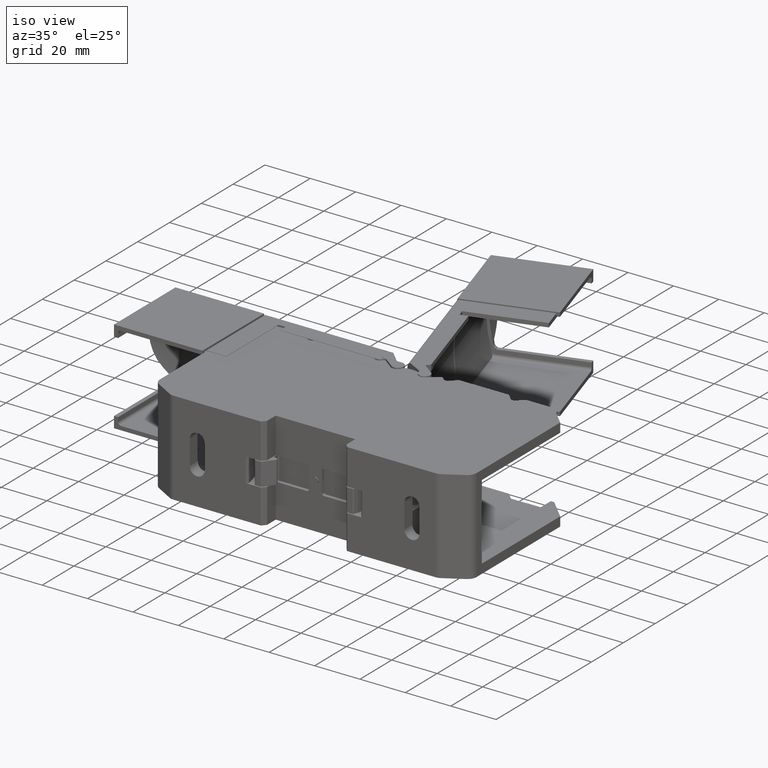
[diagram: clean part render]
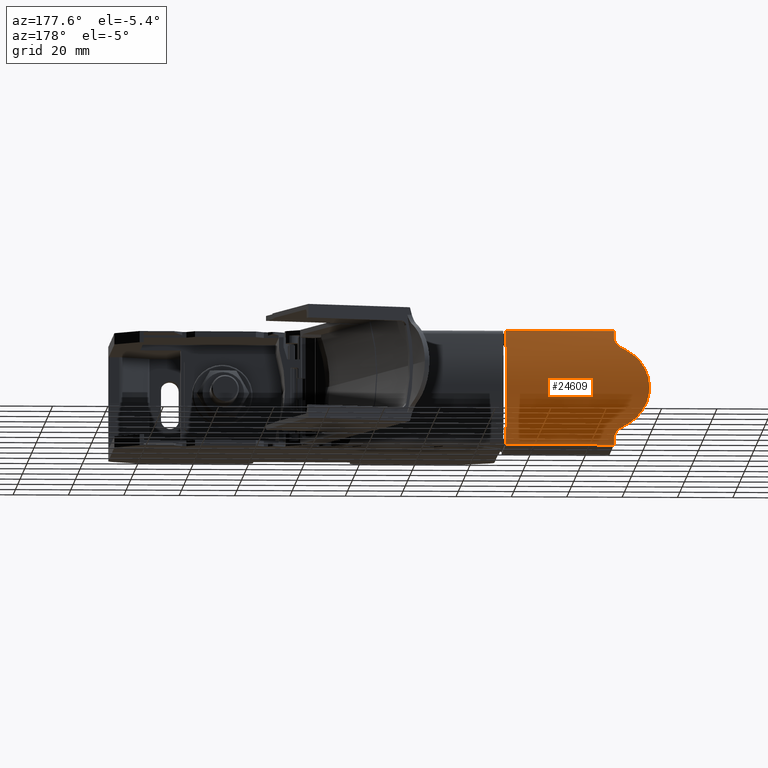
[diagram: tour spotlight — one face highlighted and labeled with its STEP entity id]
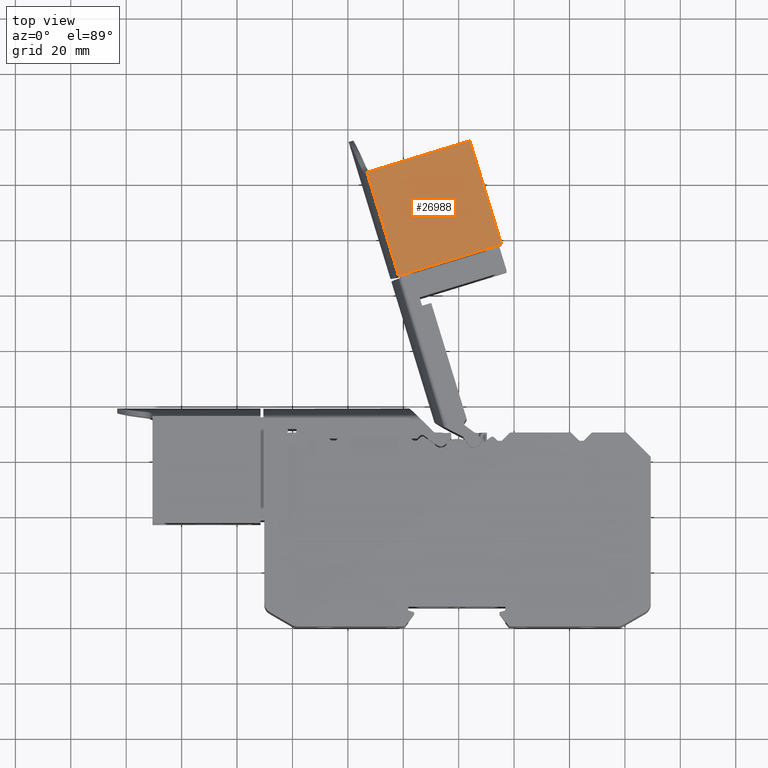
[diagram: tour spotlight — one face highlighted and labeled with its STEP entity id]
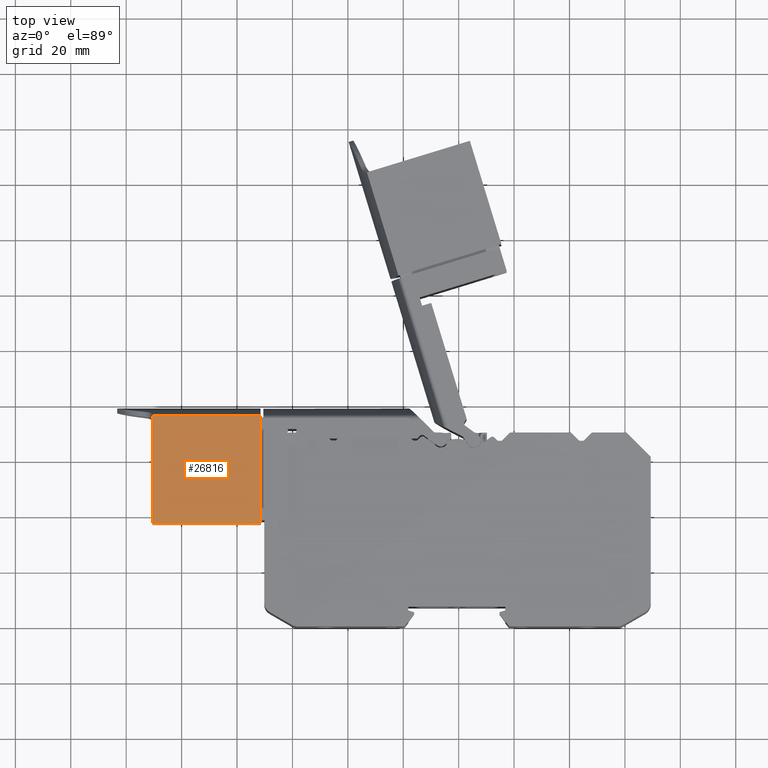
[diagram: tour spotlight — one face highlighted and labeled with its STEP entity id]
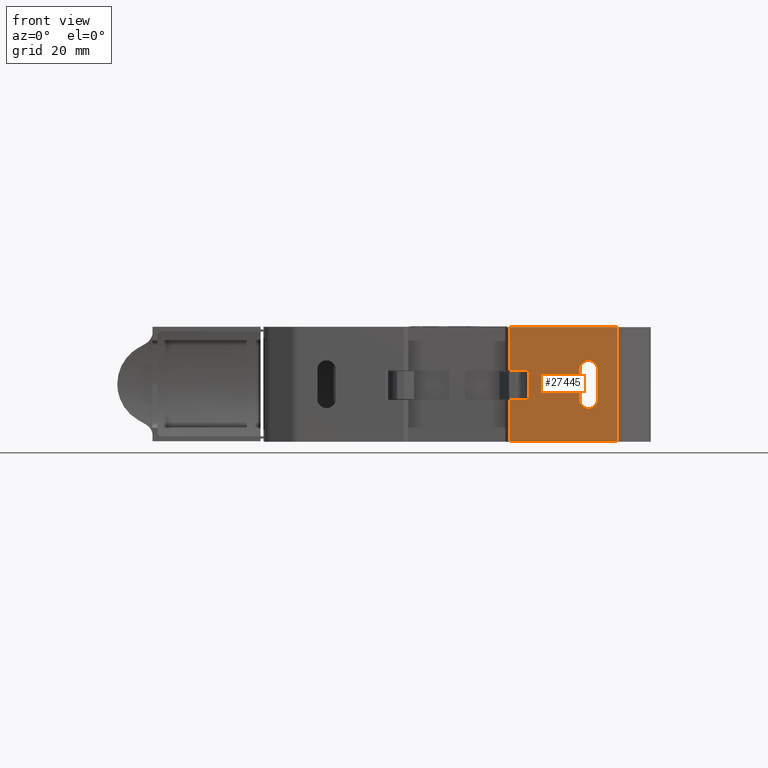
[diagram: tour spotlight — one face highlighted and labeled with its STEP entity id]
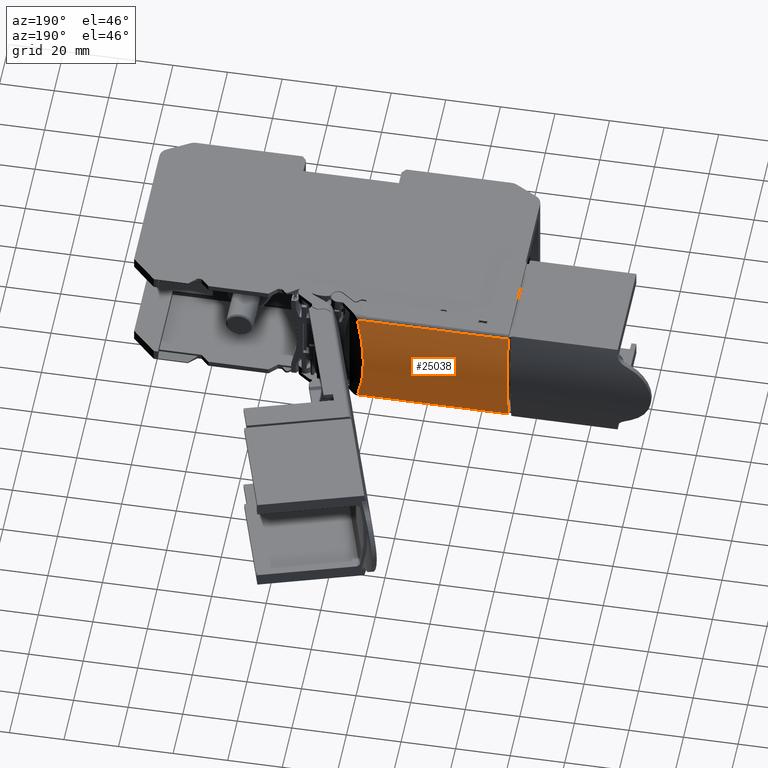
[diagram: tour spotlight — one face highlighted and labeled with its STEP entity id]
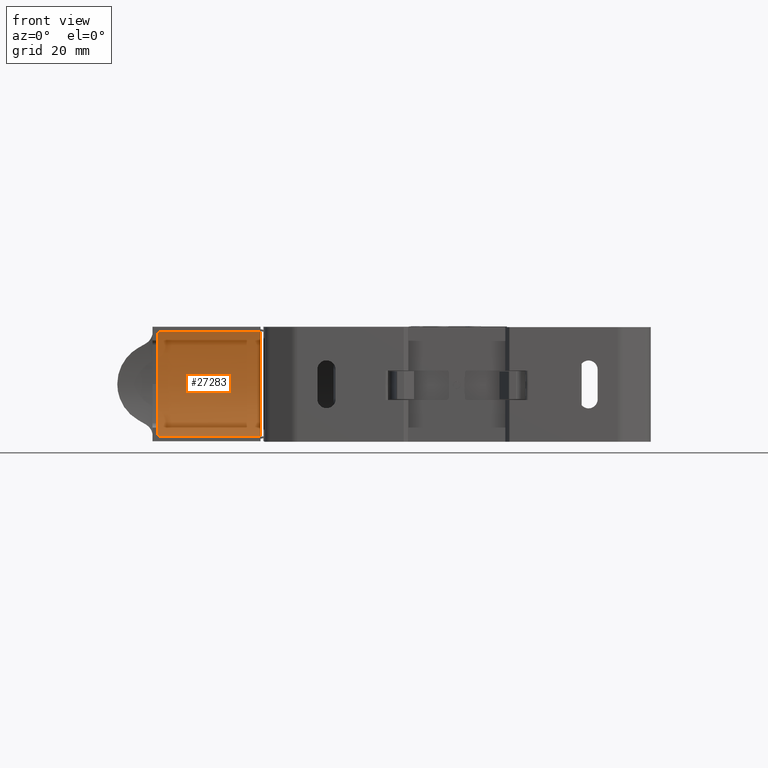
[diagram: tour spotlight — one face highlighted and labeled with its STEP entity id]
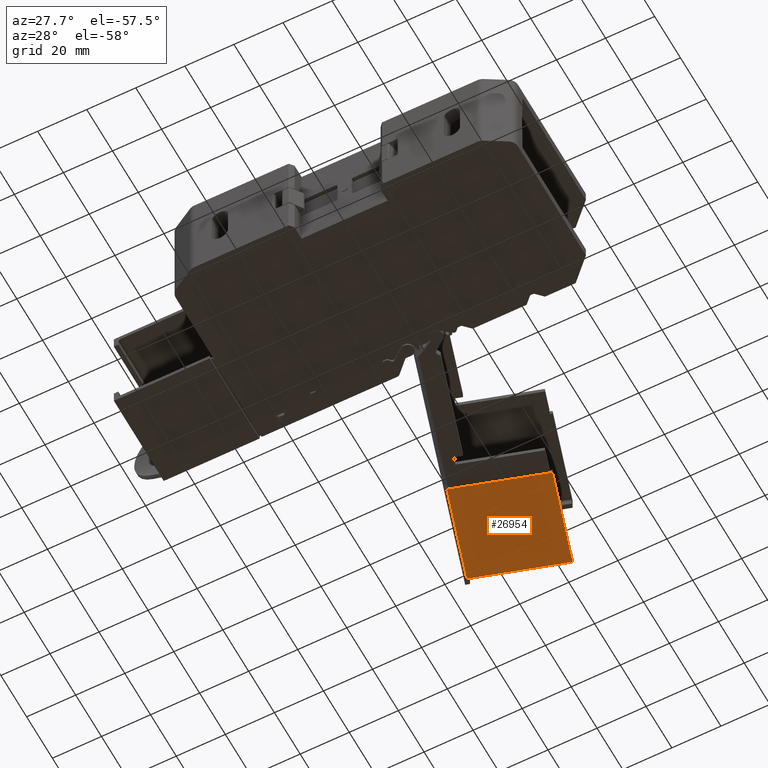
[diagram: tour spotlight — one face highlighted and labeled with its STEP entity id]
A machine part: a face-by-face anatomy tour. The part has 1050 B-rep faces; the first image is the clean iso view, then the 7 largest visible faces are spotlighted one at a time (largest first), each with its STEP entity span.

Face 1 — auxiliary view, entity #24609. In plain terms, the highlighted cylindrical surface (partial cylindrical patch) has radius 72.5704 mm, axis along (-1, -0, -0).
Definition (entity closure, byte-faithful):
#2932 = CARTESIAN_POINT ( 'NONE',  ( -110.5050725394208700, 296.0026341954508700, -7.005957406667571200 ) ) ;
#2943 = CARTESIAN_POINT ( 'NONE',  ( -71.50503606137853300, 296.0026341954512100, 34.29404259332196100 ) ) ;
#2955 = CARTESIAN_POINT ( 'NONE',  ( -110.5050725394209100, 296.7543316294995200, -4.279842130120591100 ) ) ;
#2965 = CARTESIAN_POINT ( 'NONE',  ( -71.50503606137856100, 296.0026341954508700, -7.005957406667895300 ) ) ;
#3032 = CARTESIAN_POINT ( 'NONE',  ( -110.5050725394209100, 296.7543316294995700, 31.56792731677514400 ) ) ;
#3036 = CARTESIAN_POINT ( 'NONE',  ( -110.5050725394209100, 296.0026341954512100, 34.29404259332169100 ) ) ;
#3298 = CARTESIAN_POINT ( 'NONE',  ( -112.8990787374856400, 297.5151600481688100, -0.9737772837747648000 ) ) ;
#3333 = CARTESIAN_POINT ( 'NONE',  ( -112.8990787374856100, 297.5151600481690400, 28.26186247042915100 ) ) ;
#3347 = CARTESIAN_POINT ( 'NONE',  ( -115.7178854605156700, 297.8305044492249700, 26.63442365009392500 ) ) ;
#4615 = CARTESIAN_POINT ( 'NONE',  ( -116.8543125562984400, 297.9499082700007800, 1.309933913630054300 ) ) ;
#4620 = CARTESIAN_POINT ( 'NONE',  ( -115.7178854605156500, 297.8305044492246300, 0.6536615365604073700 ) ) ;
#4625 = CARTESIAN_POINT ( 'NONE',  ( -117.8877289958305700, 298.0850312315689600, 2.101820327857587300 ) ) ;
#4660 = CARTESIAN_POINT ( 'NONE',  ( -121.8244631157580200, 298.7269411740001600, 7.295368205416640900 ) ) ;
#4676 = CARTESIAN_POINT ( 'NONE',  ( -123.0474294755066900, 298.9668181013278200, 11.03290725538871300 ) ) ;
#4679 = CARTESIAN_POINT ( 'NONE',  ( -122.3253881063606900, 298.8228957410053100, 8.503766200315354200 ) ) ;
#4681 = CARTESIAN_POINT ( 'NONE',  ( -123.2178854605150200, 299.0026341954512600, 13.64404259332700200 ) ) ;
#4686 = CARTESIAN_POINT ( 'NONE',  ( -119.7493985249675900, 298.3599004902917500, 3.961221199725914600 ) ) ;
#4687 = CARTESIAN_POINT ( 'NONE',  ( -123.2178168627923000, 299.0026341954513800, 12.32765114214174500 ) ) ;
#4692 = CARTESIAN_POINT ( 'NONE',  ( -122.5363702102339500, 298.8646483526479200, 9.125904335226772800 ) ) ;
#4699 = CARTESIAN_POINT ( 'NONE',  ( -121.5341373543549500, 298.6726628011476200, 6.707679128745735600 ) ) ;
#4700 = CARTESIAN_POINT ( 'NONE',  ( -120.5435702718405500, 298.4944608753864900, 4.994346449375384200 ) ) ;
#6408 = ORIENTED_EDGE ( 'NONE', *, *, #41979, .T. ) ;
#6415 = ORIENTED_EDGE ( 'NONE', *, *, #22274, .T. ) ;
#6420 = ORIENTED_EDGE ( 'NONE', *, *, #22697, .F. ) ;
#6428 = ORIENTED_EDGE ( 'NONE', *, *, #22706, .F. ) ;
#6430 = ORIENTED_EDGE ( 'NONE', *, *, #22236, .T. ) ;
#6434 = ORIENTED_EDGE ( 'NONE', *, *, #22875, .F. ) ;
#6446 = ORIENTED_EDGE ( 'NONE', *, *, #22860, .T. ) ;
#6454 = ORIENTED_EDGE ( 'NONE', *, *, #22877, .T. ) ;
#6455 = ORIENTED_EDGE ( 'NONE', *, *, #22346, .T. ) ;
#6513 = ORIENTED_EDGE ( 'NONE', *, *, #22858, .T. ) ;
#6517 = ORIENTED_EDGE ( 'NONE', *, *, #22810, .T. ) ;
#7533 = AXIS2_PLACEMENT_3D ( 'NONE', #28595, #28640, #28612 ) ;
#8913 = VECTOR ( 'NONE', #16417, 1000.000000000000000 ) ;
#8927 = VECTOR ( 'NONE', #16405, 1000.000000000000000 ) ;
#10444 = EDGE_LOOP ( 'NONE', ( #6430, #6408, #6415, #6455, #6446, #6454, #6428, #6434, #6420, #6513, #6517 ) ) ;
#11038 = CARTESIAN_POINT ( 'NONE',  ( -123.2178854605150200, 299.0026341954512600, 13.64404259332700200 ) ) ;
#14370 = CARTESIAN_POINT ( 'NONE',  ( -112.8990787374856400, 297.5151600481688100, -0.9737772837747648000 ) ) ;
#14378 = CARTESIAN_POINT ( 'NONE',  ( -113.8386809784956500, 297.6264662795966300, -0.4325218491647461700 ) ) ;
#14391 = CARTESIAN_POINT ( 'NONE',  ( -114.7782832195056400, 297.7315902217683300, 0.1100049369902266500 ) ) ;
#14418 = CARTESIAN_POINT ( 'NONE',  ( -115.7178854605156500, 297.8305044492246300, 0.6536615365604073700 ) ) ;
#14440 = CARTESIAN_POINT ( 'NONE',  ( -115.7178854605156700, 297.8305044492249700, 26.63442365009392500 ) ) ;
#14450 = CARTESIAN_POINT ( 'NONE',  ( -120.5456305636312600, 298.4948162919998800, 22.29035455602923200 ) ) ;
#14457 = CARTESIAN_POINT ( 'NONE',  ( -123.2178854605150200, 299.0026341954512600, 13.64404259332700200 ) ) ;
#14458 = CARTESIAN_POINT ( 'NONE',  ( -123.2178166039367700, 299.0026341954513200, 14.96163359631207800 ) ) ;
#14461 = CARTESIAN_POINT ( 'NONE',  ( -122.3245490683579500, 298.8227298901330800, 18.78656780046410200 ) ) ;
#14463 = CARTESIAN_POINT ( 'NONE',  ( -121.5332937732005800, 298.6725186577847900, 20.58177543177640000 ) ) ;
#14469 = CARTESIAN_POINT ( 'NONE',  ( -123.0468398982345200, 298.9667093662881100, 16.25857729928655700 ) ) ;
#14471 = CARTESIAN_POINT ( 'NONE',  ( -119.7516645137898100, 298.3602924371360200, 23.32400741723201100 ) ) ;
#14472 = CARTESIAN_POINT ( 'NONE',  ( -122.5349856909624000, 298.8643669743854600, 18.16674449967978700 ) ) ;
#14473 = CARTESIAN_POINT ( 'NONE',  ( -116.8557200271408600, 297.9500562874826000, 25.97733773302375600 ) ) ;
#14480 = CARTESIAN_POINT ( 'NONE',  ( -117.8900427511207200, 298.0853156094952400, 25.18454580807052400 ) ) ;
#14486 = CARTESIAN_POINT ( 'NONE',  ( -121.8240387161216300, 298.7268660525979800, 19.99350243357102000 ) ) ;
#14542 = CARTESIAN_POINT ( 'NONE',  ( -114.7782832195056500, 297.7315902217685600, 27.17808024966412000 ) ) ;
#14592 = CARTESIAN_POINT ( 'NONE',  ( -115.7178854605156700, 297.8305044492249700, 26.63442365009392500 ) ) ;
#14593 = CARTESIAN_POINT ( 'NONE',  ( -112.8990787374856100, 297.5151600481690400, 28.26186247042915100 ) ) ;
#14618 = CARTESIAN_POINT ( 'NONE',  ( -113.8386809784956300, 297.6264662795968000, 27.72060703581912100 ) ) ;
#16379 = LINE ( 'NONE', #16395, #8913 ) ;
#16395 = CARTESIAN_POINT ( 'NONE',  ( -76.78309961592110300, 296.0026341954512100, 34.29404259332215300 ) ) ;
#16405 = DIRECTION ( 'NONE',  ( 1.000000000000000000, -0.0000000000000000000, -1.399743634989590200E-014 ) ) ;
#16414 = LINE ( 'NONE', #16427, #8927 ) ;
#16417 = DIRECTION ( 'NONE',  ( -1.000000000000000000, -0.0000000000000000000, -1.399743634989587900E-014 ) ) ;
#16427 = CARTESIAN_POINT ( 'NONE',  ( -76.78309961592110300, 296.0026341954508700, -7.005957406667866000 ) ) ;
#16657 = CARTESIAN_POINT ( 'NONE',  ( -110.5050725394209100, 296.7543316294995200, -4.279842130120591100 ) ) ;
#16673 = CARTESIAN_POINT ( 'NONE',  ( -110.6902964498702700, 296.9210348751601600, -3.613440781147891500 ) ) ;
#16676 = CARTESIAN_POINT ( 'NONE',  ( -111.5524000782824900, 297.2732893154860100, -2.104790158137654000 ) ) ;
#16691 = CARTESIAN_POINT ( 'NONE',  ( -111.9068176756990600, 297.3574504058832400, -1.721233141650084600 ) ) ;
#16693 = CARTESIAN_POINT ( 'NONE',  ( -112.5890468488559700, 297.4783235225494300, -1.152904448784714900 ) ) ;
#16697 = CARTESIAN_POINT ( 'NONE',  ( -110.7509474996588500, 296.9600851017753500, -3.453106211314353100 ) ) ;
#16698 = CARTESIAN_POINT ( 'NONE',  ( -112.3022275973306400, 297.4345922338901000, -1.362225731798913700 ) ) ;
#16702 = CARTESIAN_POINT ( 'NONE',  ( -111.1358080831133900, 297.1461706832241700, -2.668142986840614100 ) ) ;
#16703 = CARTESIAN_POINT ( 'NONE',  ( -112.8990787374856400, 297.5151600481688100, -0.9737772837747648000 ) ) ;
#16709 = CARTESIAN_POINT ( 'NONE',  ( -110.5406787375246200, 296.7976699919843200, -4.109809499437533400 ) ) ;
#16713 = CARTESIAN_POINT ( 'NONE',  ( -111.4430299112808600, 297.2428652729285000, -2.241134135855897800 ) ) ;
#16720 = CARTESIAN_POINT ( 'NONE',  ( -110.5848447592352200, 296.8396539482259900, -3.942514777383192100 ) ) ;
#16721 = CARTESIAN_POINT ( 'NONE',  ( -111.7850661941773600, 297.3307325373290300, -1.844138529884344000 ) ) ;
#16726 = CARTESIAN_POINT ( 'NONE',  ( -110.9623878346607900, 297.0756127972816200, -2.971762713192237700 ) ) ;
#16798 = CARTESIAN_POINT ( 'NONE',  ( -110.5768128519845400, 296.8416504467264800, 31.22534288695381100 ) ) ;
#16803 = CARTESIAN_POINT ( 'NONE',  ( -111.5558430060588600, 297.2742218530887000, 29.38868509675656100 ) ) ;
#16805 = CARTESIAN_POINT ( 'NONE',  ( -111.7900969805826500, 297.3319038059735200, 29.12686630354597000 ) ) ;
#16806 = CARTESIAN_POINT ( 'NONE',  ( -112.5920451089430400, 297.4786800021800600, 28.43925616072877800 ) ) ;
#16810 = CARTESIAN_POINT ( 'NONE',  ( -110.9656071161409300, 297.0770143889518500, 30.25387019935655900 ) ) ;
#16813 = CARTESIAN_POINT ( 'NONE',  ( -110.6832678298413100, 296.9234533724201100, 30.89395174535571100 ) ) ;
#16816 = CARTESIAN_POINT ( 'NONE',  ( -110.5050725394208800, 296.5215034153927700, -5.193314432073258900 ) ) ;
#16817 = CARTESIAN_POINT ( 'NONE',  ( -112.3069632571910700, 297.4352826845832900, 28.64700144787073900 ) ) ;
#16822 = CARTESIAN_POINT ( 'NONE',  ( -110.5050725394208800, 296.2708741833486100, -6.102249526536594400 ) ) ;
#16824 = CARTESIAN_POINT ( 'NONE',  ( -110.5050725394208700, 296.0026341954508700, -7.005957406667571200 ) ) ;
#16829 = CARTESIAN_POINT ( 'NONE',  ( -110.5050725394209100, 296.7543316294995200, -4.279842130120591100 ) ) ;
#16832 = CARTESIAN_POINT ( 'NONE',  ( -111.4444580978837400, 297.2432595497788800, 29.52745615180381800 ) ) ;
#16839 = CARTESIAN_POINT ( 'NONE',  ( -111.9141323003532300, 297.3589899000401100, 29.00220007896457400 ) ) ;
#16842 = CARTESIAN_POINT ( 'NONE',  ( -110.5050725394209100, 296.7543316294995700, 31.56792731677514400 ) ) ;
#16852 = CARTESIAN_POINT ( 'NONE',  ( -111.1380258914160500, 297.1469778109016000, 29.95270735156883600 ) ) ;
#16855 = CARTESIAN_POINT ( 'NONE',  ( -112.8990787374856100, 297.5151600481690400, 28.26186247042915100 ) ) ;
#16856 = CARTESIAN_POINT ( 'NONE',  ( -71.50503606137854700, 298.1275586446678900, 2.404528938922788000 ) ) ;
#16858 = CARTESIAN_POINT ( 'NONE',  ( -71.50503606137857600, 298.4491518370589900, 22.60896952829321200 ) ) ;
#16859 = CARTESIAN_POINT ( 'NONE',  ( -71.50503606137856100, 298.9074537241138500, 18.02937710363967500 ) ) ;
#16861 = CARTESIAN_POINT ( 'NONE',  ( -71.50503606137856100, 298.7486453247216800, 6.633161411566352000 ) ) ;
#16863 = CARTESIAN_POINT ( 'NONE',  ( -71.50503606137854700, 298.2723217834017600, 23.91422224343003600 ) ) ;
#16865 = CARTESIAN_POINT ( 'NONE',  ( -71.50503606137857600, 298.6296991631433000, 21.08437738760826000 ) ) ;
#16871 = CARTESIAN_POINT ( 'NONE',  ( -71.50503606137856100, 298.2249550791960900, 3.047815334385647600 ) ) ;
#16872 = CARTESIAN_POINT ( 'NONE',  ( -71.50503606137856100, 299.0026603343211500, 15.40083514149736400 ) ) ;
#16874 = CARTESIAN_POINT ( 'NONE',  ( -71.50503606137856100, 298.3484606626171300, 23.37053859831084400 ) ) ;
#16875 = CARTESIAN_POINT ( 'NONE',  ( -71.50503606137854700, 297.7384610543200000, 27.57167114957357200 ) ) ;
#16877 = CARTESIAN_POINT ( 'NONE',  ( -71.50503606137856100, 298.3030749782707300, 23.69676955682021800 ) ) ;
#16878 = CARTESIAN_POINT ( 'NONE',  ( -71.50503606137856100, 299.0025819177121800, 10.13045749698705000 ) ) ;
#16886 = CARTESIAN_POINT ( 'NONE',  ( -71.50503606137856100, 297.1482717808631300, -2.818222776735284500 ) ) ;
#16887 = CARTESIAN_POINT ( 'NONE',  ( -71.50503606137857600, 298.0076347368871000, 1.654052157220104600 ) ) ;
#16888 = CARTESIAN_POINT ( 'NONE',  ( -110.5050725394209100, 296.7543316294995700, 31.56792731677514400 ) ) ;
#16889 = CARTESIAN_POINT ( 'NONE',  ( -71.50503606137857600, 297.7478127057052600, 0.1574679875662869700 ) ) ;
#16890 = CARTESIAN_POINT ( 'NONE',  ( -71.50503606137856100, 298.1768145106148000, 2.726629994697314300 ) ) ;
#16891 = CARTESIAN_POINT ( 'NONE',  ( -71.50503606137854700, 298.2091761780170600, 2.941468065064890800 ) ) ;
#16892 = CARTESIAN_POINT ( 'NONE',  ( -71.50503606137854700, 298.2565233376459400, 24.02412149681621000 ) ) ;
#16893 = CARTESIAN_POINT ( 'NONE',  ( -71.50503606137853300, 296.9923976259451600, 30.95914434686582700 ) ) ;
#16895 = CARTESIAN_POINT ( 'NONE',  ( -110.5050725394209100, 296.5215034153930600, 32.48139961872760000 ) ) ;
#16896 = CARTESIAN_POINT ( 'NONE',  ( -71.50503606137856100, 296.4974135096060800, -5.338853303269062600 ) ) ;
#16897 = CARTESIAN_POINT ( 'NONE',  ( -71.50503606137853300, 296.0026341954512100, 34.29404259332196100 ) ) ;
#16901 = CARTESIAN_POINT ( 'NONE',  ( -71.50503606137856100, 296.0026341954508700, -7.005957406667895300 ) ) ;
#16935 = CARTESIAN_POINT ( 'NONE',  ( -110.5050725394209100, 296.0026341954512100, 34.29404259332169100 ) ) ;
#16940 = CARTESIAN_POINT ( 'NONE',  ( -110.5050725394209100, 296.2708741833490600, 33.39033471319067600 ) ) ;
#17644 = VERTEX_POINT ( 'NONE', #37505 ) ;
#18615 = VERTEX_POINT ( 'NONE', #11038 ) ;
#19101 = B_SPLINE_CURVE_WITH_KNOTS ( 'NONE', 3,
 ( #14370, #14378, #14391, #14418 ),
 .UNSPECIFIED., .F., .F.,
 ( 4, 4 ),
 ( 0.0000000000000000000, 1.000000000000000000 ),
 .UNSPECIFIED. ) ;
#19180 = B_SPLINE_CURVE_WITH_KNOTS ( 'NONE', 3,
 ( #14592, #14542, #14618, #14593 ),
 .UNSPECIFIED., .F., .F.,
 ( 4, 4 ),
 ( 0.0000000000000000000, 1.000000000000000000 ),
 .UNSPECIFIED. ) ;
#19188 = B_SPLINE_CURVE_WITH_KNOTS ( 'NONE', 3,
 ( #14457, #14458, #14469, #14472, #14461, #14486, #14463, #14450, #14471, #14480, #14473, #14440 ),
 .UNSPECIFIED., .F., .F.,
 ( 4, 2, 2, 2, 2, 4 ),
 ( 0.0000000000000000000, 0.2499999999999998900, 0.3749999999999997800, 0.4999999999999996700, 0.7499999999999998900, 1.000000000000000000 ),
 .UNSPECIFIED. ) ;
#19221 = B_SPLINE_CURVE_WITH_KNOTS ( 'NONE', 3,
 ( #16657, #16709, #16720, #16673, #16697, #16726, #16702, #16713, #16676, #16721, #16691, #16698, #16693, #16703 ),
 .UNSPECIFIED., .F., .F.,
 ( 4, 2, 2, 2, 2, 2, 4 ),
 ( 0.0000000000000000000, 0.1250000000000009700, 0.2500000000000019400, 0.5000000000000036600, 0.6250000000000045500, 0.7500000000000053300, 1.000000000000000000 ),
 .UNSPECIFIED. ) ;
#19248 = B_SPLINE_CURVE_WITH_KNOTS ( 'NONE', 3,
 ( #16824, #16822, #16816, #16829 ),
 .UNSPECIFIED., .F., .F.,
 ( 4, 4 ),
 ( 0.0000000000000000000, 1.000000000000000000 ),
 .UNSPECIFIED. ) ;
#19254 = B_SPLINE_CURVE_WITH_KNOTS ( 'NONE', 3,
 ( #16901, #16896, #16886, #16889, #16887, #16856, #16890, #16891, #16871, #16861, #16878, #16872, #16859, #16865, #16858, #16874, #16877, #16863, #16892, #16875, #16893, #16897 ),
 .UNSPECIFIED., .F., .F.,
 ( 4, 1, 1, 1, 1, 2, 2, 2, 1, 1, 1, 1, 2, 2, 4 ),
 ( 0.0000000000000000000, 0.1250000000000031100, 0.1875000000000046600, 0.2187500000000054400, 0.2343750000000058300, 0.2421875000000060200, 0.2500000000000062200, 0.5000000000000008900, 0.6249999999999982200, 0.6874999999999971100, 0.7187499999999966700, 0.7343749999999965600, 0.7421874999999966700, 0.7499999999999967800, 1.000000000000000000 ),
 .UNSPECIFIED. ) ;
#19262 = B_SPLINE_CURVE_WITH_KNOTS ( 'NONE', 3,
 ( #16855, #16806, #16817, #16839, #16805, #16803, #16832, #16852, #16810, #16813, #16798, #16842 ),
 .UNSPECIFIED., .F., .F.,
 ( 4, 2, 2, 2, 2, 4 ),
 ( 0.0000000000000000000, 0.2499999999999993900, 0.3750000000000018300, 0.5000000000000043300, 0.7500000000000021100, 1.000000000000000000 ),
 .UNSPECIFIED. ) ;
#19271 = B_SPLINE_CURVE_WITH_KNOTS ( 'NONE', 3,
 ( #16888, #16895, #16940, #16935 ),
 .UNSPECIFIED., .F., .F.,
 ( 4, 4 ),
 ( 0.0000000000000000000, 1.000000000000000000 ),
 .UNSPECIFIED. ) ;
#19660 = B_SPLINE_CURVE_WITH_KNOTS ( 'NONE', 3,
 ( #4620, #4615, #4625, #4686, #4700, #4699, #4660, #4679, #4692, #4676, #4687, #4681 ),
 .UNSPECIFIED., .F., .F.,
 ( 4, 2, 2, 2, 2, 4 ),
 ( 0.0000000000000000000, 0.2500000000000003300, 0.5000000000000005600, 0.6250000000000006700, 0.7500000000000008900, 1.000000000000000000 ),
 .UNSPECIFIED. ) ;
#22236 = EDGE_CURVE ( 'NONE', #37027, #17644, #19101, .T. ) ;
#22274 = EDGE_CURVE ( 'NONE', #18615, #37132, #19188, .T. ) ;
#22346 = EDGE_CURVE ( 'NONE', #37132, #37154, #19180, .T. ) ;
#22697 = EDGE_CURVE ( 'NONE', #36415, #36540, #16414, .T. ) ;
#22706 = EDGE_CURVE ( 'NONE', #36413, #36571, #16379, .T. ) ;
#22810 = EDGE_CURVE ( 'NONE', #36473, #37027, #19221, .T. ) ;
#22858 = EDGE_CURVE ( 'NONE', #36415, #36473, #19248, .T. ) ;
#22860 = EDGE_CURVE ( 'NONE', #37154, #36621, #19262, .T. ) ;
#22875 = EDGE_CURVE ( 'NONE', #36540, #36413, #19254, .T. ) ;
#22877 = EDGE_CURVE ( 'NONE', #36621, #36571, #19271, .T. ) ;
#24609 = ADVANCED_FACE ( 'NONE', ( #28638 ), #28598, .T. ) ;
#28595 = CARTESIAN_POINT ( 'NONE',  ( 69.49498369894000400, 226.4322175288260200, 13.64404259332774100 ) ) ;
#28598 = CYLINDRICAL_SURFACE ( 'NONE', #7533, 72.57041666662542000 ) ;
#28612 = DIRECTION ( 'NONE',  ( 1.147392156081976500E-015, -1.000000000000000000, 0.0000000000000000000 ) ) ;
#28638 = FACE_OUTER_BOUND ( 'NONE', #10444, .T. ) ;
#28640 = DIRECTION ( 'NONE',  ( -1.000000000000000000, -1.165734175856429900E-015, -9.051553984792400000E-030 ) ) ;
#36413 = VERTEX_POINT ( 'NONE', #2943 ) ;
#36415 = VERTEX_POINT ( 'NONE', #2932 ) ;
#36473 = VERTEX_POINT ( 'NONE', #2955 ) ;
#36540 = VERTEX_POINT ( 'NONE', #2965 ) ;
#36571 = VERTEX_POINT ( 'NONE', #3036 ) ;
#36621 = VERTEX_POINT ( 'NONE', #3032 ) ;
#37027 = VERTEX_POINT ( 'NONE', #3298 ) ;
#37132 = VERTEX_POINT ( 'NONE', #3347 ) ;
#37154 = VERTEX_POINT ( 'NONE', #3333 ) ;
#37505 = CARTESIAN_POINT ( 'NONE',  ( -115.7178854605156500, 297.8305044492246300, 0.6536615365604073700 ) ) ;
#41979 = EDGE_CURVE ( 'NONE', #17644, #18615, #19660, .T. ) ;

Face 2 — top view, entity #26988. In plain terms, the highlighted planar face has unit normal (-0, 0, 1).
Definition (entity closure, byte-faithful):
#441 = VECTOR ( 'NONE', #34008, 1000.000000000000100 ) ;
#458 = VECTOR ( 'NONE', #34087, 1000.000000000000000 ) ;
#478 = VECTOR ( 'NONE', #34003, 1000.000000000000100 ) ;
#492 = VECTOR ( 'NONE', #34078, 1000.000000000000100 ) ;
#9676 = EDGE_LOOP ( 'NONE', ( #31246, #31267, #31226, #31165 ) ) ;
#10769 = AXIS2_PLACEMENT_3D ( 'NONE', #40837, #40838, #40844 ) ;
#17672 = VERTEX_POINT ( 'NONE', #37449 ) ;
#17673 = VERTEX_POINT ( 'NONE', #37459 ) ;
#17694 = VERTEX_POINT ( 'NONE', #37627 ) ;
#17713 = VERTEX_POINT ( 'NONE', #37631 ) ;
#25775 = EDGE_CURVE ( 'NONE', #17694, #17672, #34016, .T. ) ;
#25787 = EDGE_CURVE ( 'NONE', #17673, #17672, #34022, .T. ) ;
#25835 = EDGE_CURVE ( 'NONE', #17713, #17673, #34072, .T. ) ;
#25858 = EDGE_CURVE ( 'NONE', #17713, #17694, #34122, .T. ) ;
#26988 = ADVANCED_FACE ( 'NONE', ( #40841 ), #40851, .T. ) ;
#31165 = ORIENTED_EDGE ( 'NONE', *, *, #25787, .F. ) ;
#31226 = ORIENTED_EDGE ( 'NONE', *, *, #25775, .T. ) ;
#31246 = ORIENTED_EDGE ( 'NONE', *, *, #25835, .F. ) ;
#31267 = ORIENTED_EDGE ( 'NONE', *, *, #25858, .T. ) ;
#33978 = CARTESIAN_POINT ( 'NONE',  ( 4.039143424670877300, 395.2841667578187000, 34.29404259331268200 ) ) ;
#34003 = DIRECTION ( 'NONE',  ( -0.9563047559630366600, -0.2923717047227327700, 0.0000000000000000000 ) ) ;
#34008 = DIRECTION ( 'NONE',  ( -0.2923717047227393800, 0.9563047559630346600, -6.982962677686257200E-015 ) ) ;
#34016 = LINE ( 'NONE', #33978, #478 ) ;
#34022 = LINE ( 'NONE', #34024, #441 ) ;
#34024 = CARTESIAN_POINT ( 'NONE',  ( 19.50457969562841100, 211.7878501523167600, 34.29404259331438700 ) ) ;
#34072 = LINE ( 'NONE', #34074, #492 ) ;
#34074 = CARTESIAN_POINT ( 'NONE',  ( 64.80372116568318600, 373.0797458713389000, 34.29404259331336400 ) ) ;
#34078 = DIRECTION ( 'NONE',  ( -0.9563047559630347700, -0.2923717047227388800, -0.0000000000000000000 ) ) ;
#34087 = DIRECTION ( 'NONE',  ( -0.2923717047227258900, 0.9563047559630387700, -0.0000000000000000000 ) ) ;
#34099 = CARTESIAN_POINT ( 'NONE',  ( 13.89849413492873400, 363.0356836706170000, 34.29404259331339200 ) ) ;
#34122 = LINE ( 'NONE', #34099, #458 ) ;
#37449 = CARTESIAN_POINT ( 'NONE',  ( -33.12234359697023900, 383.9227600066753300, 34.29404259331298000 ) ) ;
#37459 = CARTESIAN_POINT ( 'NONE',  ( -21.71983644763584600, 346.6268396399912000, 34.29404259331338500 ) ) ;
#37627 = CARTESIAN_POINT ( 'NONE',  ( 4.039143424670879100, 395.2841667578187000, 34.29404259331315100 ) ) ;
#37631 = CARTESIAN_POINT ( 'NONE',  ( 15.44165057400474900, 357.9882463911345100, 34.29404259331337100 ) ) ;
#40837 = CARTESIAN_POINT ( 'NONE',  ( 63.26056472660660300, 378.1271831508235000, 34.29404259331339200 ) ) ;
#40838 = DIRECTION ( 'NONE',  ( -6.176222358096040400E-015, 2.005076964057270100E-014, 1.000000000000000000 ) ) ;
#40841 = FACE_OUTER_BOUND ( 'NONE', #9676, .T. ) ;
#40844 = DIRECTION ( 'NONE',  ( 0.0000000000000000000, -1.000000000000000000, 2.005076964057270100E-014 ) ) ;
#40851 = PLANE ( 'NONE',  #10769 ) ;

Face 3 — top view, entity #26816. In plain terms, the highlighted planar face has unit normal (-0, -0, 1).
Definition (entity closure, byte-faithful):
#145 = AXIS2_PLACEMENT_3D ( 'NONE', #38594, #38574, #38580 ) ;
#2943 = CARTESIAN_POINT ( 'NONE',  ( -71.50503606137853300, 296.0026341954512100, 34.29404259332196100 ) ) ;
#3036 = CARTESIAN_POINT ( 'NONE',  ( -110.5050725394209100, 296.0026341954512100, 34.29404259332169100 ) ) ;
#7163 = VERTEX_POINT ( 'NONE', #29096 ) ;
#7203 = VERTEX_POINT ( 'NONE', #29071 ) ;
#8913 = VECTOR ( 'NONE', #16417, 1000.000000000000000 ) ;
#9115 = VECTOR ( 'NONE', #20500, 1000.000000000000000 ) ;
#9175 = VECTOR ( 'NONE', #20614, 1000.000000000000000 ) ;
#9176 = VECTOR ( 'NONE', #20668, 1000.000000000000000 ) ;
#15520 = EDGE_LOOP ( 'NONE', ( #25052, #25030, #25090, #25083 ) ) ;
#16379 = LINE ( 'NONE', #16395, #8913 ) ;
#16395 = CARTESIAN_POINT ( 'NONE',  ( -76.78309961592110300, 296.0026341954512100, 34.29404259332215300 ) ) ;
#16417 = DIRECTION ( 'NONE',  ( -1.000000000000000000, -0.0000000000000000000, -1.399743634989587900E-014 ) ) ;
#20495 = CARTESIAN_POINT ( 'NONE',  ( -76.78309961591979500, 257.2726293225507600, 34.29404259332125100 ) ) ;
#20497 = LINE ( 'NONE', #20495, #9115 ) ;
#20500 = DIRECTION ( 'NONE',  ( 1.000000000000000000, 1.548761119352100300E-014, -0.0000000000000000000 ) ) ;
#20612 = CARTESIAN_POINT ( 'NONE',  ( -110.5050725394207900, 205.6551190216960100, 34.29404259332169100 ) ) ;
#20613 = LINE ( 'NONE', #20612, #9175 ) ;
#20614 = DIRECTION ( 'NONE',  ( 1.165734175856400000E-015, -1.000000000000000000, -0.0000000000000000000 ) ) ;
#20662 = CARTESIAN_POINT ( 'NONE',  ( -71.50503606137839100, 205.6551190216960100, 34.29404259332196900 ) ) ;
#20668 = DIRECTION ( 'NONE',  ( 1.776356839400265100E-015, -1.000000000000000000, -0.0000000000000000000 ) ) ;
#20677 = LINE ( 'NONE', #20662, #9176 ) ;
#22706 = EDGE_CURVE ( 'NONE', #36413, #36571, #16379, .T. ) ;
#23158 = EDGE_CURVE ( 'NONE', #7163, #7203, #20497, .T. ) ;
#23182 = EDGE_CURVE ( 'NONE', #36571, #7163, #20613, .T. ) ;
#23190 = EDGE_CURVE ( 'NONE', #36413, #7203, #20677, .T. ) ;
#25030 = ORIENTED_EDGE ( 'NONE', *, *, #23182, .T. ) ;
#25052 = ORIENTED_EDGE ( 'NONE', *, *, #22706, .T. ) ;
#25083 = ORIENTED_EDGE ( 'NONE', *, *, #23190, .F. ) ;
#25090 = ORIENTED_EDGE ( 'NONE', *, *, #23158, .T. ) ;
#26816 = ADVANCED_FACE ( 'NONE', ( #38593 ), #38600, .T. ) ;
#29071 = CARTESIAN_POINT ( 'NONE',  ( -71.50503606137849000, 257.2726293225508100, 34.29404259332149300 ) ) ;
#29096 = CARTESIAN_POINT ( 'NONE',  ( -110.5050725394208700, 257.2726293225502400, 34.29404259332139300 ) ) ;
#36413 = VERTEX_POINT ( 'NONE', #2943 ) ;
#36571 = VERTEX_POINT ( 'NONE', #3036 ) ;
#38574 = DIRECTION ( 'NONE',  ( -1.399743634989587900E-014, -1.392186033032226400E-014, 1.000000000000000000 ) ) ;
#38580 = DIRECTION ( 'NONE',  ( 1.000000000000000000, 0.0000000000000000000, 1.399743634989587900E-014 ) ) ;
#38593 = FACE_OUTER_BOUND ( 'NONE', #15520, .T. ) ;
#38594 = CARTESIAN_POINT ( 'NONE',  ( -76.78309961592110300, 205.6551190216955000, 34.29404259332089600 ) ) ;
#38600 = PLANE ( 'NONE',  #145 ) ;

Face 4 — front view, entity #27445. In plain terms, the highlighted planar face has unit normal (0, -1, -0).
Definition (entity closure, byte-faithful):
#2705 = FACE_OUTER_BOUND ( 'NONE', #38874, .T. ) ;
#2710 = DIRECTION ( 'NONE',  ( 0.0000000000000000000, 3.032748202779680200E-014, -1.000000000000000000 ) ) ;
#2730 = FACE_BOUND ( 'NONE', #38915, .T. ) ;
#2734 = PLANE ( 'NONE',  #3384 ) ;
#2736 = CARTESIAN_POINT ( 'NONE',  ( 25.46702381132519800, 219.9983640700941400, 23.87996959994595200 ) ) ;
#2748 = DIRECTION ( 'NONE',  ( 2.648425885396095000E-028, -1.000000000000000000, -3.032748202779680200E-014 ) ) ;
#3384 = AXIS2_PLACEMENT_3D ( 'NONE', #2736, #2748, #2710 ) ;
#3574 = VECTOR ( 'NONE', #6739, 1000.000000000000100 ) ;
#3579 = CIRCLE ( 'NONE', #3603, 3.300000000000002500 ) ;
#3603 = AXIS2_PLACEMENT_3D ( 'NONE', #6815, #6818, #6765 ) ;
#4041 = CARTESIAN_POINT ( 'NONE',  ( 50.16640261176585400, 219.9983640700946200, 8.129540389841874800 ) ) ;
#4086 = CARTESIAN_POINT ( 'NONE',  ( 25.11485985916189600, 219.9983640700945100, 18.47996959986062400 ) ) ;
#4088 = CARTESIAN_POINT ( 'NONE',  ( 25.21065262213585000, 219.9983640701698300, 13.17996959994001400 ) ) ;
#4136 = CARTESIAN_POINT ( 'NONE',  ( 46.86640263655957700, 219.9983640700947400, 4.829944912501564300 ) ) ;
#6633 = CARTESIAN_POINT ( 'NONE',  ( 25.11485985916190700, 219.9983640700943100, 18.47996959986105700 ) ) ;
#6720 = LINE ( 'NONE', #6633, #3574 ) ;
#6739 = DIRECTION ( 'NONE',  ( 0.01807115478076108300, 3.141627534737192300E-014, -0.9998367033495468800 ) ) ;
#6765 = DIRECTION ( 'NONE',  ( 0.0000000000000000000, 3.364312195833804900E-014, -1.000000000000000000 ) ) ;
#6815 = CARTESIAN_POINT ( 'NONE',  ( 46.86640263655957700, 219.9983640700946200, 8.129944912501567700 ) ) ;
#6818 = DIRECTION ( 'NONE',  ( 2.648425885396095000E-028, -1.000000000000000000, -3.032748202779680200E-014 ) ) ;
#6932 = VERTEX_POINT ( 'NONE', #28933 ) ;
#6941 = VERTEX_POINT ( 'NONE', #29031 ) ;
#7010 = VERTEX_POINT ( 'NONE', #29017 ) ;
#7062 = VERTEX_POINT ( 'NONE', #29043 ) ;
#7070 = VERTEX_POINT ( 'NONE', #29032 ) ;
#7080 = VERTEX_POINT ( 'NONE', #29040 ) ;
#7090 = VERTEX_POINT ( 'NONE', #29004 ) ;
#7100 = VERTEX_POINT ( 'NONE', #28994 ) ;
#7103 = VERTEX_POINT ( 'NONE', #28997 ) ;
#7112 = VERTEX_POINT ( 'NONE', #29110 ) ;
#7637 = VECTOR ( 'NONE', #26486, 1000.000000000000000 ) ;
#7646 = VECTOR ( 'NONE', #26410, 1000.000000000000000 ) ;
#7674 = VECTOR ( 'NONE', #26621, 1000.000000000000000 ) ;
#7682 = VECTOR ( 'NONE', #26725, 1000.000000000000000 ) ;
#7718 = VECTOR ( 'NONE', #26684, 1000.000000000000000 ) ;
#7749 = VECTOR ( 'NONE', #26714, 1000.000000000000200 ) ;
#7765 = VECTOR ( 'NONE', #26720, 1000.000000000000000 ) ;
#9377 = VECTOR ( 'NONE', #22654, 1000.000000000000100 ) ;
#9387 = VECTOR ( 'NONE', #22758, 1000.000000000000000 ) ;
#9457 = VECTOR ( 'NONE', #22793, 1000.000000000000100 ) ;
#9460 = AXIS2_PLACEMENT_3D ( 'NONE', #22806, #22822, #22847 ) ;
#9469 = CIRCLE ( 'NONE', #9460, 3.300000000000002500 ) ;
#9470 = CIRCLE ( 'NONE', #9491, 3.299999999999995800 ) ;
#9491 = AXIS2_PLACEMENT_3D ( 'NONE', #20936, #20892, #20933 ) ;
#20892 = DIRECTION ( 'NONE',  ( 2.648425885396095000E-028, -1.000000000000000000, -3.032748202779680200E-014 ) ) ;
#20933 = DIRECTION ( 'NONE',  ( 0.0000000000000000000, 3.364312195833811800E-014, -1.000000000000000000 ) ) ;
#20936 = CARTESIAN_POINT ( 'NONE',  ( 46.86771427425895800, 219.9983640700943100, 18.82997437124159400 ) ) ;
#22586 = CARTESIAN_POINT ( 'NONE',  ( 43.56771429905269600, 219.9983640700942800, 18.83037889390157100 ) ) ;
#22614 = LINE ( 'NONE', #22646, #9387 ) ;
#22646 = CARTESIAN_POINT ( 'NONE',  ( -76.62952108257430000, 219.9983640700942500, -7.220030400046628200 ) ) ;
#22648 = LINE ( 'NONE', #22586, #9377 ) ;
#22654 = DIRECTION ( 'NONE',  ( -0.0001225826241507265900, 3.112766242087928700E-014, -0.9999999924867500900 ) ) ;
#22758 = DIRECTION ( 'NONE',  ( 1.000000000000000000, -4.723131462173908900E-028, 1.396592535537252100E-014 ) ) ;
#22793 = DIRECTION ( 'NONE',  ( 0.0001225826241494328900, -3.112766242088012000E-014, 0.9999999924867500900 ) ) ;
#22806 = CARTESIAN_POINT ( 'NONE',  ( 46.86640263655957700, 219.9983640700946200, 8.129944912501567700 ) ) ;
#22811 = LINE ( 'NONE', #22831, #9457 ) ;
#22822 = DIRECTION ( 'NONE',  ( 2.648425885396095000E-028, -1.000000000000000000, -3.032748202779680200E-014 ) ) ;
#22831 = CARTESIAN_POINT ( 'NONE',  ( 50.16771424946523400, 219.9983640700942800, 18.82956984858190100 ) ) ;
#22847 = DIRECTION ( 'NONE',  ( 0.0000000000000000000, 3.364312195833804900E-014, -1.000000000000000000 ) ) ;
#23516 = EDGE_CURVE ( 'NONE', #7090, #7080, #22648, .T. ) ;
#23523 = EDGE_CURVE ( 'NONE', #7103, #7010, #22614, .T. ) ;
#23561 = EDGE_CURVE ( 'NONE', #7080, #37954, #9469, .T. ) ;
#23568 = EDGE_CURVE ( 'NONE', #37898, #7112, #22811, .T. ) ;
#23603 = EDGE_CURVE ( 'NONE', #7112, #7090, #9470, .T. ) ;
#23995 = EDGE_CURVE ( 'NONE', #7100, #7062, #26387, .T. ) ;
#24049 = EDGE_CURVE ( 'NONE', #6941, #7100, #26466, .T. ) ;
#24142 = EDGE_CURVE ( 'NONE', #7062, #37836, #26609, .T. ) ;
#24196 = EDGE_CURVE ( 'NONE', #7070, #7103, #26677, .T. ) ;
#24212 = EDGE_CURVE ( 'NONE', #7010, #6941, #26682, .T. ) ;
#24217 = EDGE_CURVE ( 'NONE', #37848, #6932, #26709, .T. ) ;
#24221 = EDGE_CURVE ( 'NONE', #6932, #7070, #26716, .T. ) ;
#26387 = LINE ( 'NONE', #26437, #7646 ) ;
#26410 = DIRECTION ( 'NONE',  ( 0.0000000000000000000, 3.032748202779680200E-014, -1.000000000000000000 ) ) ;
#26437 = CARTESIAN_POINT ( 'NONE',  ( 18.52742671392760700, 219.9983640700941400, 23.87996959994595200 ) ) ;
#26466 = LINE ( 'NONE', #26478, #7637 ) ;
#26478 = CARTESIAN_POINT ( 'NONE',  ( 25.46702381132519800, 219.9983640700938600, 34.17996959994373900 ) ) ;
#26486 = DIRECTION ( 'NONE',  ( -1.000000000000000000, -2.648425885396095000E-028, -8.032008844130190100E-042 ) ) ;
#26609 = LINE ( 'NONE', #26626, #7674 ) ;
#26621 = DIRECTION ( 'NONE',  ( 1.000000000000000000, 2.648425885396095000E-028, 8.032008844130190100E-042 ) ) ;
#26626 = CARTESIAN_POINT ( 'NONE',  ( 25.46702381132519800, 219.9983640700943100, 18.47996959986204500 ) ) ;
#26677 = LINE ( 'NONE', #26701, #7682 ) ;
#26680 = CARTESIAN_POINT ( 'NONE',  ( 57.35168814648046300, 219.9983640700941400, 23.87996959994595200 ) ) ;
#26682 = LINE ( 'NONE', #26680, #7718 ) ;
#26684 = DIRECTION ( 'NONE',  ( -0.0000000000000000000, -3.032748202779680200E-014, 1.000000000000000000 ) ) ;
#26701 = CARTESIAN_POINT ( 'NONE',  ( 18.52751813863063300, 219.9983640700941400, 23.87996959994595200 ) ) ;
#26705 = CARTESIAN_POINT ( 'NONE',  ( 25.21065262213585000, 219.9983640700944800, 13.17996959993981900 ) ) ;
#26709 = LINE ( 'NONE', #26705, #7749 ) ;
#26714 = DIRECTION ( 'NONE',  ( -0.01806456913037560900, 2.618023257198472000E-014, -0.9998368223575954100 ) ) ;
#26716 = LINE ( 'NONE', #26722, #7765 ) ;
#26720 = DIRECTION ( 'NONE',  ( -1.000000000000000000, -2.648425885396095000E-028, -8.032008844130190100E-042 ) ) ;
#26722 = CARTESIAN_POINT ( 'NONE',  ( 25.46702381132519800, 219.9983640700946200, 7.879969599952695500 ) ) ;
#26725 = DIRECTION ( 'NONE',  ( 0.0000000000000000000, 3.032748202779680200E-014, -1.000000000000000000 ) ) ;
#27445 = ADVANCED_FACE ( 'NONE', ( #2730, #2705 ), #2734, .T. ) ;
#28933 = CARTESIAN_POINT ( 'NONE',  ( 25.11489478020620300, 219.9983640700933700, 7.879969599952695500 ) ) ;
#28994 = CARTESIAN_POINT ( 'NONE',  ( 18.52742671392761100, 219.9983640700942300, 34.17996959994356800 ) ) ;
#28997 = CARTESIAN_POINT ( 'NONE',  ( 18.52751813863064000, 219.9983640700943100, -7.220030400045410500 ) ) ;
#29004 = CARTESIAN_POINT ( 'NONE',  ( 43.56771429905269600, 219.9983640700942800, 18.83037889390157100 ) ) ;
#29017 = CARTESIAN_POINT ( 'NONE',  ( 57.35168814648089600, 219.9983640700946800, -7.220030400044732000 ) ) ;
#29031 = CARTESIAN_POINT ( 'NONE',  ( 57.35168814648018600, 219.9983642687867300, 34.17996959994372500 ) ) ;
#29032 = CARTESIAN_POINT ( 'NONE',  ( 18.52751813863063300, 219.9983640700943700, 7.879969599952695500 ) ) ;
#29040 = CARTESIAN_POINT ( 'NONE',  ( 43.56640266135329400, 219.9983640700946200, 8.130349435161260600 ) ) ;
#29043 = CARTESIAN_POINT ( 'NONE',  ( 18.52742671392712700, 219.9983640700945700, 18.47996959986023000 ) ) ;
#29110 = CARTESIAN_POINT ( 'NONE',  ( 50.16771424946523400, 219.9983640700942800, 18.82956984858190100 ) ) ;
#37836 = VERTEX_POINT ( 'NONE', #4086 ) ;
#37848 = VERTEX_POINT ( 'NONE', #4088 ) ;
#37898 = VERTEX_POINT ( 'NONE', #4041 ) ;
#37954 = VERTEX_POINT ( 'NONE', #4136 ) ;
#38874 = EDGE_LOOP ( 'NONE', ( #40401, #40412, #40384, #40337, #40380, #40385, #40440, #40399, #40409 ) ) ;
#38915 = EDGE_LOOP ( 'NONE', ( #40341, #40403, #40421, #40431, #40413 ) ) ;
#40337 = ORIENTED_EDGE ( 'NONE', *, *, #23995, .T. ) ;
#40341 = ORIENTED_EDGE ( 'NONE', *, *, #23561, .F. ) ;
#40380 = ORIENTED_EDGE ( 'NONE', *, *, #24142, .T. ) ;
#40384 = ORIENTED_EDGE ( 'NONE', *, *, #24049, .T. ) ;
#40385 = ORIENTED_EDGE ( 'NONE', *, *, #42129, .T. ) ;
#40399 = ORIENTED_EDGE ( 'NONE', *, *, #24221, .T. ) ;
#40401 = ORIENTED_EDGE ( 'NONE', *, *, #23523, .T. ) ;
#40403 = ORIENTED_EDGE ( 'NONE', *, *, #23516, .F. ) ;
#40409 = ORIENTED_EDGE ( 'NONE', *, *, #24196, .T. ) ;
#40412 = ORIENTED_EDGE ( 'NONE', *, *, #24212, .T. ) ;
#40413 = ORIENTED_EDGE ( 'NONE', *, *, #42141, .F. ) ;
#40421 = ORIENTED_EDGE ( 'NONE', *, *, #23603, .F. ) ;
#40431 = ORIENTED_EDGE ( 'NONE', *, *, #23568, .F. ) ;
#40440 = ORIENTED_EDGE ( 'NONE', *, *, #24217, .T. ) ;
#42129 = EDGE_CURVE ( 'NONE', #37836, #37848, #6720, .T. ) ;
#42141 = EDGE_CURVE ( 'NONE', #37954, #37898, #3579, .T. ) ;

Face 5 — auxiliary view, entity #25038. In plain terms, the highlighted cylindrical surface (partial cylindrical patch) has radius 72.5704 mm, axis along (-1, -0, -0).
Definition (entity closure, byte-faithful):
#290 = AXIS2_PLACEMENT_3D ( 'NONE', #32270, #32261, #32281 ) ;
#2984 = CARTESIAN_POINT ( 'NONE',  ( -70.50503776011096600, 296.3658822438444500, 33.02826077965128300 ) ) ;
#2991 = CARTESIAN_POINT ( 'NONE',  ( -15.19383050639610200, 296.3658822438445100, 33.02826077965129800 ) ) ;
#7258 = VERTEX_POINT ( 'NONE', #29154 ) ;
#7297 = VERTEX_POINT ( 'NONE', #29131 ) ;
#8975 = VECTOR ( 'NONE', #16981, 1000.000000000000000 ) ;
#9230 = VECTOR ( 'NONE', #21086, 1000.000000000000000 ) ;
#15602 = EDGE_LOOP ( 'NONE', ( #25293, #25300, #25348, #25342 ) ) ;
#16981 = DIRECTION ( 'NONE',  ( 1.000000000000000000, 1.165734175856429900E-015, 9.051553984792400000E-030 ) ) ;
#16992 = LINE ( 'NONE', #17016, #8975 ) ;
#17016 = CARTESIAN_POINT ( 'NONE',  ( 69.49498369893991900, 296.3658822438445700, 33.02826077965124800 ) ) ;
#19430 = B_SPLINE_CURVE_WITH_KNOTS ( 'NONE', 3,
 ( #21448, #21459, #21463, #21461, #21425, #21398, #21423, #21469, #21472, #21400 ),
 .UNSPECIFIED., .F., .F.,
 ( 4, 2, 2, 2, 4 ),
 ( 0.0000000000000000000, 0.2500000000000000000, 0.5000000000000000000, 0.7500000000000000000, 1.000000000000000000 ),
 .UNSPECIFIED. ) ;
#19441 = B_SPLINE_CURVE_WITH_KNOTS ( 'NONE', 3,
 ( #21102, #21171, #21114, #21174, #21095, #21125, #21126, #21140, #21142, #21128, #21138, #21176, #21145, #21149, #21151, #21178, #21097, #21099, #21106, #21152, #21202, #21189, #21209, #21194, #21218, #21214 ),
 .UNSPECIFIED., .F., .F.,
 ( 4, 2, 2, 1, 1, 2, 2, 2, 2, 2, 1, 1, 2, 2, 4 ),
 ( 0.0000000000000000000, 0.1249999999999953600, 0.1874999999999929200, 0.2187499999999914500, 0.2343749999999909200, 0.2421874999999907600, 0.2499999999999906200, 0.4999999999999893400, 0.6249999999999887900, 0.6874999999999885600, 0.7187499999999884500, 0.7343749999999884500, 0.7421874999999883400, 0.7499999999999882300, 1.000000000000000000 ),
 .UNSPECIFIED. ) ;
#21076 = CARTESIAN_POINT ( 'NONE',  ( 69.49498369894000400, 296.3658822438447900, -5.740175592996974900 ) ) ;
#21084 = LINE ( 'NONE', #21076, #9230 ) ;
#21086 = DIRECTION ( 'NONE',  ( 1.000000000000000000, 1.165734175856429900E-015, 7.229011929124730800E-030 ) ) ;
#21095 = CARTESIAN_POINT ( 'NONE',  ( -16.65560584230360100, 297.8277259967263100, 26.67500622560561400 ) ) ;
#21097 = CARTESIAN_POINT ( 'NONE',  ( -17.53821518030213200, 298.7103248346163600, 7.085361573066162300 ) ) ;
#21099 = CARTESIAN_POINT ( 'NONE',  ( -17.41290689583608800, 298.5849930608081300, 5.858717454623265700 ) ) ;
#21102 = CARTESIAN_POINT ( 'NONE',  ( -15.19383050639610200, 296.3658822438445100, 33.02826077965129800 ) ) ;
#21106 = CARTESIAN_POINT ( 'NONE',  ( -17.34503130131112400, 298.5171039535907200, 5.245803729028546400 ) ) ;
#21114 = CARTESIAN_POINT ( 'NONE',  ( -16.01304150331739300, 297.1851796351948000, 29.86542135571600200 ) ) ;
#21125 = CARTESIAN_POINT ( 'NONE',  ( -16.86089843272501200, 298.0329892002332600, 25.47449854729020300 ) ) ;
#21126 = CARTESIAN_POINT ( 'NONE',  ( -16.95844915126449600, 298.1305238118890200, 24.87373395980625500 ) ) ;
#21128 = CARTESIAN_POINT ( 'NONE',  ( -17.13465449152110100, 298.3067083412310600, 23.67066738054465000 ) ) ;
#21138 = CARTESIAN_POINT ( 'NONE',  ( -17.14836590666692100, 298.3204189105741800, 23.57190485697531900 ) ) ;
#21140 = CARTESIAN_POINT ( 'NONE',  ( -17.06334106371929900, 298.2354013746468100, 24.17210102360876800 ) ) ;
#21142 = CARTESIAN_POINT ( 'NONE',  ( -17.10638389923394700, 298.2784400041096000, 23.87125874427587400 ) ) ;
#21145 = CARTESIAN_POINT ( 'NONE',  ( -17.83056394432829700, 299.0026341954514900, 16.92414400664706900 ) ) ;
#21149 = CARTESIAN_POINT ( 'NONE',  ( -17.83059022648916800, 299.0026341954513200, 12.00399188666581000 ) ) ;
#21151 = CARTESIAN_POINT ( 'NONE',  ( -17.77490349609558300, 298.9470164683020200, 10.36260877890486000 ) ) ;
#21152 = CARTESIAN_POINT ( 'NONE',  ( -17.25670556618781500, 298.4287654829079800, 4.531608404087586800 ) ) ;
#21171 = CARTESIAN_POINT ( 'NONE',  ( -15.63061241376983400, 296.8026810694364600, 31.45239414818597400 ) ) ;
#21174 = CARTESIAN_POINT ( 'NONE',  ( -16.50515591089945700, 297.6772908777825300, 27.47398289768307600 ) ) ;
#21176 = CARTESIAN_POINT ( 'NONE',  ( -17.60779949856255700, 298.7798351540452600, 20.21010571438646900 ) ) ;
#21178 = CARTESIAN_POINT ( 'NONE',  ( -17.60783016383435800, 298.7799497502094800, 7.904213146691785300 ) ) ;
#21189 = CARTESIAN_POINT ( 'NONE',  ( -17.18991722667867400, 298.3619711064843600, 4.021854772519613900 ) ) ;
#21194 = CARTESIAN_POINT ( 'NONE',  ( -16.72361612106907800, 297.8956510149794200, 0.6079220399433273900 ) ) ;
#21202 = CARTESIAN_POINT ( 'NONE',  ( -17.21689363509693400, 298.3889496562498500, 4.225728001866915700 ) ) ;
#21209 = CARTESIAN_POINT ( 'NONE',  ( -17.17599663721315700, 298.3480496649194700, 3.918369624437031200 ) ) ;
#21214 = CARTESIAN_POINT ( 'NONE',  ( -15.19383050639603800, 296.3658822438444500, -5.740175592996947400 ) ) ;
#21218 = CARTESIAN_POINT ( 'NONE',  ( -16.06746357762644500, 297.2395491486505500, -2.588192479412476200 ) ) ;
#21398 = CARTESIAN_POINT ( 'NONE',  ( -70.50503776011095200, 299.0026341954512100, 16.91445108918558700 ) ) ;
#21400 = CARTESIAN_POINT ( 'NONE',  ( -70.50503776011096600, 296.3658822438444500, 33.02826077965128300 ) ) ;
#21423 = CARTESIAN_POINT ( 'NONE',  ( -70.50503776011093700, 298.7812251100270400, 20.18484139108159800 ) ) ;
#21425 = CARTESIAN_POINT ( 'NONE',  ( -70.50503776011093700, 299.0026341954512600, 10.37363409746881300 ) ) ;
#21448 = CARTESIAN_POINT ( 'NONE',  ( -70.50503776011093700, 296.3658822438444500, -5.740175592996919800 ) ) ;
#21459 = CARTESIAN_POINT ( 'NONE',  ( -70.50503776011093700, 297.2394380914473700, -2.588593147478196200 ) ) ;
#21461 = CARTESIAN_POINT ( 'NONE',  ( -70.50503776011093700, 298.7812251100269200, 7.103243795572811200 ) ) ;
#21463 = CARTESIAN_POINT ( 'NONE',  ( -70.50503776011095200, 297.8996246057615200, 0.6221121451579000300 ) ) ;
#21469 = CARTESIAN_POINT ( 'NONE',  ( -70.50503776011096600, 297.8996246057617400, 26.66597304149652500 ) ) ;
#21472 = CARTESIAN_POINT ( 'NONE',  ( -70.50503776011093700, 297.2394380914475400, 29.87667833413262400 ) ) ;
#22888 = EDGE_CURVE ( 'NONE', #36591, #36575, #16992, .T. ) ;
#23291 = EDGE_CURVE ( 'NONE', #7297, #7258, #21084, .T. ) ;
#23310 = EDGE_CURVE ( 'NONE', #36575, #7258, #19441, .T. ) ;
#23346 = EDGE_CURVE ( 'NONE', #7297, #36591, #19430, .T. ) ;
#25038 = ADVANCED_FACE ( 'NONE', ( #32284 ), #32273, .T. ) ;
#25293 = ORIENTED_EDGE ( 'NONE', *, *, #23346, .T. ) ;
#25300 = ORIENTED_EDGE ( 'NONE', *, *, #22888, .T. ) ;
#25342 = ORIENTED_EDGE ( 'NONE', *, *, #23291, .F. ) ;
#25348 = ORIENTED_EDGE ( 'NONE', *, *, #23310, .T. ) ;
#29131 = CARTESIAN_POINT ( 'NONE',  ( -70.50503776011093700, 296.3658822438444500, -5.740175592996919800 ) ) ;
#29154 = CARTESIAN_POINT ( 'NONE',  ( -15.19383050639603800, 296.3658822438444500, -5.740175592996947400 ) ) ;
#32261 = DIRECTION ( 'NONE',  ( -1.000000000000000000, -1.165734175856429900E-015, -9.051553984792400000E-030 ) ) ;
#32270 = CARTESIAN_POINT ( 'NONE',  ( 69.49498369894000400, 226.4322175288260200, 13.64404259332774100 ) ) ;
#32273 = CYLINDRICAL_SURFACE ( 'NONE', #290, 72.57041666662542000 ) ;
#32281 = DIRECTION ( 'NONE',  ( 1.147392156081976500E-015, -1.000000000000000000, 0.0000000000000000000 ) ) ;
#32284 = FACE_OUTER_BOUND ( 'NONE', #15602, .T. ) ;
#36575 = VERTEX_POINT ( 'NONE', #2991 ) ;
#36591 = VERTEX_POINT ( 'NONE', #2984 ) ;

Face 6 — front view, entity #27283. In plain terms, the highlighted cylindrical surface (partial cylindrical patch) has radius 70.8204 mm, axis along (-1, -0, -0).
Definition (entity closure, byte-faithful):
#1576 = FACE_OUTER_BOUND ( 'NONE', #9856, .T. ) ;
#1646 = DIRECTION ( 'NONE',  ( 1.175744661865659800E-015, -1.000000000000000000, 0.0000000000000000000 ) ) ;
#1686 = CYLINDRICAL_SURFACE ( 'NONE', #38176, 70.82041666662550500 ) ;
#1690 = CARTESIAN_POINT ( 'NONE',  ( 30.33417841141100300, 226.4322175288260200, 13.64404259332724000 ) ) ;
#1700 = DIRECTION ( 'NONE',  ( -1.000000000000000000, -1.165734175856429900E-015, -9.051553984792400000E-030 ) ) ;
#2040 = VERTEX_POINT ( 'NONE', #28942 ) ;
#2076 = VERTEX_POINT ( 'NONE', #28963 ) ;
#7274 = VERTEX_POINT ( 'NONE', #29161 ) ;
#7304 = VERTEX_POINT ( 'NONE', #29136 ) ;
#7308 = VERTEX_POINT ( 'NONE', #29143 ) ;
#7311 = VERTEX_POINT ( 'NONE', #29215 ) ;
#8270 = VECTOR ( 'NONE', #35279, 1000.000000000000000 ) ;
#8290 = VECTOR ( 'NONE', #35216, 1000.000000000000000 ) ;
#9856 = EDGE_LOOP ( 'NONE', ( #37969, #37999, #37989, #38061, #37981, #38033 ) ) ;
#12431 = EDGE_CURVE ( 'NONE', #2076, #7304, #35225, .T. ) ;
#12436 = EDGE_CURVE ( 'NONE', #2076, #7274, #18867, .T. ) ;
#12441 = EDGE_CURVE ( 'NONE', #7311, #2040, #35303, .T. ) ;
#16254 = EDGE_CURVE ( 'NONE', #7308, #2040, #18857, .T. ) ;
#18857 = B_SPLINE_CURVE_WITH_KNOTS ( 'NONE', 3,
 ( #35940, #35916, #35999, #36018, #36020, #35968, #35991, #35974, #35981, #35969, #35993, #36015, #35983, #35985, #36011, #35986, #35970, #36002, #36021, #35971, #35995, #36013, #36014, #35992, #36016, #36009, #35966 ),
 .UNSPECIFIED., .F., .F.,
 ( 4, 2, 2, 2, 1, 1, 2, 2, 2, 2, 1, 2, 2, 2, 4 ),
 ( 0.0000000000000000000, 0.1249999999992578200, 0.1874999999988740100, 0.2187499999986747300, 0.2343749999986060300, 0.2421874999985787200, 0.2460937499985930100, 0.2499999999986072800, 0.3749999999988866100, 0.4374999999990247800, 0.4687499999990889500, 0.4843749999991195400, 0.4999999999991501200, 0.7499999999995750100, 1.000000000000000000 ),
 .UNSPECIFIED. ) ;
#18867 = B_SPLINE_CURVE_WITH_KNOTS ( 'NONE', 3,
 ( #35251, #35214, #35220, #35246, #35256, #35227, #35247, #35262, #35250, #35258, #35260, #35240, #35232, #35233, #35234, #35238, #35252, #35221, #35235, #35222, #35223, #35237, #35253, #35248, #35241, #35242, #35263, #35249 ),
 .UNSPECIFIED., .F., .F.,
 ( 4, 2, 2, 2, 1, 2, 2, 2, 2, 1, 1, 1, 2, 2, 2, 4 ),
 ( 0.0000000000000000000, 0.2500000000001394400, 0.3750000000002132200, 0.4375000000002640100, 0.4687500000002822700, 0.4843750000002918200, 0.5000000000003013100, 0.6250000000003659300, 0.6875000000003982400, 0.7187500000004183300, 0.7343750000004284400, 0.7421875000004334300, 0.7460937500004358700, 0.7500000000004384300, 0.8750000000002192700, 1.000000000000000000 ),
 .UNSPECIFIED. ) ;
#19410 = B_SPLINE_CURVE_WITH_KNOTS ( 'NONE', 3,
 ( #21046, #21075, #21109, #21180, #21162, #21118, #21130, #21105, #21132, #21156, #21110, #21116, #21134, #21136, #21100, #21164, #21112, #21166, #21092, #21123 ),
 .UNSPECIFIED., .F., .F.,
 ( 4, 1, 1, 1, 2, 2, 2, 1, 1, 1, 2, 2, 4 ),
 ( 0.0000000000000000000, 0.1250000000000016700, 0.1875000000000029400, 0.2187500000000032200, 0.2343750000000032500, 0.2500000000000032200, 0.5000000000000008900, 0.6249999999999996700, 0.6874999999999990000, 0.7187499999999988900, 0.7343749999999987800, 0.7499999999999986700, 1.000000000000000000 ),
 .UNSPECIFIED. ) ;
#19451 = B_SPLINE_CURVE_WITH_KNOTS ( 'NONE', 3,
 ( #21716, #21719, #21730, #21826, #21837, #21869, #21888, #21890, #21867, #21873, #21793, #21856, #21871, #21880, #21874, #21841, #21797, #21832, #21839, #21860 ),
 .UNSPECIFIED., .F., .F.,
 ( 4, 1, 1, 1, 2, 2, 2, 1, 1, 1, 2, 2, 4 ),
 ( 0.0000000000000000000, 0.1250000000000004400, 0.1875000000000006700, 0.2187500000000007800, 0.2343750000000008300, 0.2500000000000008900, 0.4999999999999985600, 0.6249999999999974500, 0.6874999999999970000, 0.7187499999999967800, 0.7343749999999968900, 0.7499999999999971100, 1.000000000000000000 ),
 .UNSPECIFIED. ) ;
#21046 = CARTESIAN_POINT ( 'NONE',  ( -71.50503606137856100, 294.6841143290952800, 32.54404259332285700 ) ) ;
#21075 = CARTESIAN_POINT ( 'NONE',  ( -71.50503606137854700, 295.1082845430281600, 31.01209469708815900 ) ) ;
#21092 = CARTESIAN_POINT ( 'NONE',  ( -71.50503606137856100, 295.5326472873283600, -2.191366285293276000 ) ) ;
#21100 = CARTESIAN_POINT ( 'NONE',  ( -71.50503606137856100, 296.7059209111143900, 4.858871862342859100 ) ) ;
#21105 = CARTESIAN_POINT ( 'NONE',  ( -71.50503606137854700, 296.5745292526402700, 23.42296280920452400 ) ) ;
#21109 = CARTESIAN_POINT ( 'NONE',  ( -71.50503606137854700, 295.6661042258414800, 28.69817091039531600 ) ) ;
#21110 = CARTESIAN_POINT ( 'NONE',  ( -71.50503606137854700, 297.2526587040177900, 12.04031518568206300 ) ) ;
#21112 = CARTESIAN_POINT ( 'NONE',  ( -71.50503606137854700, 296.6285145389027200, 4.260529519220410700 ) ) ;
#21116 = CARTESIAN_POINT ( 'NONE',  ( -71.50503606137856100, 297.1713041245116600, 9.639982494465700200 ) ) ;
#21118 = CARTESIAN_POINT ( 'NONE',  ( -71.50503606137857600, 296.4900610623358800, 24.01081611392884300 ) ) ;
#21123 = CARTESIAN_POINT ( 'NONE',  ( -71.50503606137854700, 294.6841143290951100, -5.255957406668380300 ) ) ;
#21130 = CARTESIAN_POINT ( 'NONE',  ( -71.50503606137854700, 296.5470813420152500, 23.61782792590704400 ) ) ;
#21132 = CARTESIAN_POINT ( 'NONE',  ( -71.50503606137856100, 297.0355905938332600, 20.04636956490849500 ) ) ;
#21134 = CARTESIAN_POINT ( 'NONE',  ( -71.50503606137856100, 296.9339555992987700, 6.848796590153213500 ) ) ;
#21136 = CARTESIAN_POINT ( 'NONE',  ( -71.50503606137856100, 296.7796726244118300, 5.455504196856953300 ) ) ;
#21156 = CARTESIAN_POINT ( 'NONE',  ( -71.50503606137854700, 297.2525851783189000, 16.85149740861755800 ) ) ;
#21162 = CARTESIAN_POINT ( 'NONE',  ( -71.50503606137856100, 296.4020795291264700, 24.59979833526337600 ) ) ;
#21164 = CARTESIAN_POINT ( 'NONE',  ( -71.50503606137856100, 296.6550574492837900, 4.461226523088686900 ) ) ;
#21166 = CARTESIAN_POINT ( 'NONE',  ( -71.50503606137857600, 296.1718260136314600, 0.9152013534186396200 ) ) ;
#21180 = CARTESIAN_POINT ( 'NONE',  ( -71.50503606137856100, 296.1796314891398700, 25.97058976015680500 ) ) ;
#21716 = CARTESIAN_POINT ( 'NONE',  ( -108.7050725394208100, 295.0179953317685300, -4.005957406667677700 ) ) ;
#21719 = CARTESIAN_POINT ( 'NONE',  ( -108.7050725394208000, 295.3875641943234300, -2.569677117486018200 ) ) ;
#21730 = CARTESIAN_POINT ( 'NONE',  ( -108.7050725394208300, 295.8734020408311400, -0.4025510344797170700 ) ) ;
#21793 = CARTESIAN_POINT ( 'NONE',  ( -108.7050725394208300, 297.2526112998430100, 15.13881346044683700 ) ) ;
#21797 = CARTESIAN_POINT ( 'NONE',  ( -108.7050725394208100, 296.7106538152073700, 22.39090164751791100 ) ) ;
#21826 = CARTESIAN_POINT ( 'NONE',  ( -108.7050725394208300, 296.3203108289384300, 2.147997615186838500 ) ) ;
#21832 = CARTESIAN_POINT ( 'NONE',  ( -108.7050725394208100, 296.3133827411803100, 25.51573993385307700 ) ) ;
#21837 = CARTESIAN_POINT ( 'NONE',  ( -108.7050725394208100, 296.5137897147873200, 3.428830661559915800 ) ) ;
#21839 = CARTESIAN_POINT ( 'NONE',  ( -108.7050725394207800, 295.7569528756032500, 28.42218224350671800 ) ) ;
#21841 = CARTESIAN_POINT ( 'NONE',  ( -108.7050725394208000, 296.7336556905243000, 22.20413620838347800 ) ) ;
#21856 = CARTESIAN_POINT ( 'NONE',  ( -108.7050725394208400, 297.1819254697675800, 17.37622574466599400 ) ) ;
#21860 = CARTESIAN_POINT ( 'NONE',  ( -108.7050725394208100, 295.0179953317685300, 31.29404259332210700 ) ) ;
#21867 = CARTESIAN_POINT ( 'NONE',  ( -108.7050725394208300, 297.0642302089092400, 7.679053244905501800 ) ) ;
#21869 = CARTESIAN_POINT ( 'NONE',  ( -108.7050725394207800, 296.5902859141073700, 3.978950264621181200 ) ) ;
#21871 = CARTESIAN_POINT ( 'NONE',  ( -108.7050725394208100, 296.9758185663534400, 19.97823804744894400 ) ) ;
#21873 = CARTESIAN_POINT ( 'NONE',  ( -108.7050725394208000, 297.2526799866687400, 10.65450085908727700 ) ) ;
#21874 = CARTESIAN_POINT ( 'NONE',  ( -108.7050725394208300, 296.7778185935906700, 21.83340850189140500 ) ) ;
#21880 = CARTESIAN_POINT ( 'NONE',  ( -108.7050725394208100, 296.8418550892316100, 21.27716869163888800 ) ) ;
#21888 = CARTESIAN_POINT ( 'NONE',  ( -108.7050725394208000, 296.6398559751680200, 4.345961367687734400 ) ) ;
#21890 = CARTESIAN_POINT ( 'NONE',  ( -108.7050725394207800, 296.6637258484742600, 4.528014289629551200 ) ) ;
#23307 = EDGE_CURVE ( 'NONE', #7311, #7304, #19410, .T. ) ;
#23387 = EDGE_CURVE ( 'NONE', #7274, #7308, #19451, .T. ) ;
#27283 = ADVANCED_FACE ( 'NONE', ( #1576 ), #1686, .F. ) ;
#28942 = CARTESIAN_POINT ( 'NONE',  ( -107.4550725394206000, 294.6841143290952200, 32.54404259332344700 ) ) ;
#28963 = CARTESIAN_POINT ( 'NONE',  ( -107.4550725394208000, 294.6841143290950500, -5.255957406669165400 ) ) ;
#29136 = CARTESIAN_POINT ( 'NONE',  ( -71.50503606137854700, 294.6841143290951100, -5.255957406668380300 ) ) ;
#29143 = CARTESIAN_POINT ( 'NONE',  ( -108.7050725394208100, 295.0179953317685300, 31.29404259332210700 ) ) ;
#29161 = CARTESIAN_POINT ( 'NONE',  ( -108.7050725394208100, 295.0179953317685300, -4.005957406667677700 ) ) ;
#29215 = CARTESIAN_POINT ( 'NONE',  ( -71.50503606137856100, 294.6841143290952800, 32.54404259332285700 ) ) ;
#35214 = CARTESIAN_POINT ( 'NONE',  ( -107.6092340509439300, 294.6841143290951100, -5.255957406667791400 ) ) ;
#35216 = DIRECTION ( 'NONE',  ( 1.000000000000000000, -0.0000000000000000000, 4.151380918011040000E-014 ) ) ;
#35220 = CARTESIAN_POINT ( 'NONE',  ( -107.7692964277943600, 294.6926333988658900, -5.227054412054104500 ) ) ;
#35221 = CARTESIAN_POINT ( 'NONE',  ( -108.5805081053358700, 294.8755173660305800, -4.550709307712105000 ) ) ;
#35222 = CARTESIAN_POINT ( 'NONE',  ( -108.6045308105954800, 294.8897048288407100, -4.497181898274207300 ) ) ;
#35223 = CARTESIAN_POINT ( 'NONE',  ( -108.6078198107281700, 294.8917751708027600, -4.489363807930477200 ) ) ;
#35225 = LINE ( 'NONE', #35255, #8290 ) ;
#35227 = CARTESIAN_POINT ( 'NONE',  ( -108.1809036920273000, 294.7480073523759100, -5.024531401015567100 ) ) ;
#35232 = CARTESIAN_POINT ( 'NONE',  ( -108.3959714369688900, 294.8001293738292400, -4.831972695039080000 ) ) ;
#35233 = CARTESIAN_POINT ( 'NONE',  ( -108.4451660582143800, 294.8160397259824200, -4.773289930960992000 ) ) ;
#35234 = CARTESIAN_POINT ( 'NONE',  ( -108.5133378842073200, 294.8430914712143900, -4.672456134890662600 ) ) ;
#35235 = CARTESIAN_POINT ( 'NONE',  ( -108.5967109220218300, 294.8849175924897800, -4.515253279008959500 ) ) ;
#35237 = CARTESIAN_POINT ( 'NONE',  ( -108.6099983853370400, 294.8931595474974800, -4.484135522774002100 ) ) ;
#35238 = CARTESIAN_POINT ( 'NONE',  ( -108.5351138048750100, 294.8526397557920400, -4.636720011781980200 ) ) ;
#35240 = CARTESIAN_POINT ( 'NONE',  ( -108.3396567395386100, 294.7846198904086400, -4.889184645422026200 ) ) ;
#35241 = CARTESIAN_POINT ( 'NONE',  ( -108.6475637869141900, 294.9184691099191000, -4.389361561748824400 ) ) ;
#35242 = CARTESIAN_POINT ( 'NONE',  ( -108.6870125019123900, 294.9596175047512400, -4.232580552657044100 ) ) ;
#35246 = CARTESIAN_POINT ( 'NONE',  ( -107.9992121393474100, 294.7181906081782500, -5.134337100272183800 ) ) ;
#35247 = CARTESIAN_POINT ( 'NONE',  ( -108.2155905070273900, 294.7549290965645200, -4.998930746571755200 ) ) ;
#35248 = CARTESIAN_POINT ( 'NONE',  ( -108.6261865977037400, 294.9036380565649400, -4.444554244941285100 ) ) ;
#35249 = CARTESIAN_POINT ( 'NONE',  ( -108.7050725394208100, 295.0179953317685300, -4.005957406667677700 ) ) ;
#35250 = CARTESIAN_POINT ( 'NONE',  ( -108.2905714354511100, 294.7719006808734400, -4.936161741376823300 ) ) ;
#35251 = CARTESIAN_POINT ( 'NONE',  ( -107.4550725394208000, 294.6841143290950500, -5.255957406669165400 ) ) ;
#35252 = CARTESIAN_POINT ( 'NONE',  ( -108.5657202022662500, 294.8677587369093700, -4.579912473541130100 ) ) ;
#35253 = CARTESIAN_POINT ( 'NONE',  ( -108.6117172412944600, 294.8942661501069400, -4.479955694341367900 ) ) ;
#35255 = CARTESIAN_POINT ( 'NONE',  ( -71.50503606137859000, 294.6841143290951100, -5.255957406668380300 ) ) ;
#35256 = CARTESIAN_POINT ( 'NONE',  ( -108.0740873514530200, 294.7288394453916000, -5.095276477788612400 ) ) ;
#35258 = CARTESIAN_POINT ( 'NONE',  ( -108.3145456507499200, 294.7779904846549900, -4.913661400324418300 ) ) ;
#35260 = CARTESIAN_POINT ( 'NONE',  ( -108.3303589148776500, 294.7821169090751700, -4.898422716995139800 ) ) ;
#35262 = CARTESIAN_POINT ( 'NONE',  ( -108.2658697101400800, 294.7661103756386800, -4.957576477597308800 ) ) ;
#35263 = CARTESIAN_POINT ( 'NONE',  ( -108.7050725394208500, 294.9859348462290400, -4.130539870867615100 ) ) ;
#35279 = DIRECTION ( 'NONE',  ( -1.000000000000000000, -0.0000000000000000000, 4.151380918011040000E-014 ) ) ;
#35290 = CARTESIAN_POINT ( 'NONE',  ( -71.50503606137859000, 294.6841143290953400, 32.54404259332266500 ) ) ;
#35303 = LINE ( 'NONE', #35290, #8270 ) ;
#35916 = CARTESIAN_POINT ( 'NONE',  ( -108.7050725394208100, 294.9859233412689200, 31.41867015808962900 ) ) ;
#35940 = CARTESIAN_POINT ( 'NONE',  ( -108.7050725394208100, 295.0179953317685300, 31.29404259332210700 ) ) ;
#35966 = CARTESIAN_POINT ( 'NONE',  ( -107.4550725394206000, 294.6841143290952200, 32.54404259332344700 ) ) ;
#35968 = CARTESIAN_POINT ( 'NONE',  ( -108.6326763712155400, 294.9087701009581200, 31.71352598286997800 ) ) ;
#35969 = CARTESIAN_POINT ( 'NONE',  ( -108.6153123047496100, 294.8966142089138300, 31.75918169898187700 ) ) ;
#35970 = CARTESIAN_POINT ( 'NONE',  ( -108.4441919654883900, 294.8165618075821000, 32.05928486144362200 ) ) ;
#35971 = CARTESIAN_POINT ( 'NONE',  ( -108.3708508796968600, 294.7933992170734400, 32.14488469575589800 ) ) ;
#35974 = CARTESIAN_POINT ( 'NONE',  ( -108.6217145297842100, 294.9009415120468100, 31.74291055757669300 ) ) ;
#35981 = CARTESIAN_POINT ( 'NONE',  ( -108.6186454563010800, 294.8988354669463100, 31.75082091599994900 ) ) ;
#35983 = CARTESIAN_POINT ( 'NONE',  ( -108.6132311545051900, 294.8952466878514000, 31.76433686539135300 ) ) ;
#35985 = CARTESIAN_POINT ( 'NONE',  ( -108.5777413749073900, 294.8722608487013900, 31.85116793106579900 ) ) ;
#35986 = CARTESIAN_POINT ( 'NONE',  ( -108.4678626047076900, 294.8250472057741300, 32.02780166710251600 ) ) ;
#35991 = CARTESIAN_POINT ( 'NONE',  ( -108.6280959561129200, 294.9054230817733400, 31.72608425328611800 ) ) ;
#35992 = CARTESIAN_POINT ( 'NONE',  ( -108.0765806677246300, 294.7268721872233100, 32.39110330041179300 ) ) ;
#35993 = CARTESIAN_POINT ( 'NONE',  ( -108.6139401080677800, 294.8957127685965200, 31.76258010409279500 ) ) ;
#35995 = CARTESIAN_POINT ( 'NONE',  ( -108.3584086825323900, 294.7898213307505600, 32.15808313886441300 ) ) ;
#35999 = CARTESIAN_POINT ( 'NONE',  ( -108.6870002351091200, 294.9596002473111300, 31.52073241240974300 ) ) ;
#36002 = CARTESIAN_POINT ( 'NONE',  ( -108.4078428567032400, 294.8046314856218300, 32.10342010999249900 ) ) ;
#36009 = CARTESIAN_POINT ( 'NONE',  ( -107.6097884265150800, 294.6842226686116500, 32.54404259332210400 ) ) ;
#36011 = CARTESIAN_POINT ( 'NONE',  ( -108.5360381954633600, 294.8520989510059300, 31.92697041642016100 ) ) ;
#36013 = CARTESIAN_POINT ( 'NONE',  ( -108.3536227754223200, 294.7884661625666900, 32.16308127760506600 ) ) ;
#36014 = CARTESIAN_POINT ( 'NONE',  ( -108.2225723716265300, 294.7523752267771900, 32.29621968625730900 ) ) ;
#36015 = CARTESIAN_POINT ( 'NONE',  ( -108.6130381734185600, 294.8951230366987500, 31.76480477440853900 ) ) ;
#36016 = CARTESIAN_POINT ( 'NONE',  ( -107.7701086938228800, 294.6927959081404500, 32.51493029086329000 ) ) ;
#36018 = CARTESIAN_POINT ( 'NONE',  ( -108.6574073350821700, 294.9287389511865200, 31.63831656781385200 ) ) ;
#36020 = CARTESIAN_POINT ( 'NONE',  ( -108.6470173958841800, 294.9198890766139700, 31.67171421551186900 ) ) ;
#36021 = CARTESIAN_POINT ( 'NONE',  ( -108.3894565010448800, 294.7988657684734900, 32.12471653801236500 ) ) ;
#37969 = ORIENTED_EDGE ( 'NONE', *, *, #16254, .F. ) ;
#37981 = ORIENTED_EDGE ( 'NONE', *, *, #23307, .F. ) ;
#37989 = ORIENTED_EDGE ( 'NONE', *, *, #12436, .F. ) ;
#37999 = ORIENTED_EDGE ( 'NONE', *, *, #23387, .F. ) ;
#38033 = ORIENTED_EDGE ( 'NONE', *, *, #12441, .T. ) ;
#38061 = ORIENTED_EDGE ( 'NONE', *, *, #12431, .T. ) ;
#38176 = AXIS2_PLACEMENT_3D ( 'NONE', #1690, #1700, #1646 ) ;

Face 7 — auxiliary view, entity #26954. In plain terms, the highlighted planar face has unit normal (0, 0, -1).
Definition (entity closure, byte-faithful):
#13 = VECTOR ( 'NONE', #34380, 1000.000000000000000 ) ;
#422 = VECTOR ( 'NONE', #33830, 1000.000000000000100 ) ;
#433 = VECTOR ( 'NONE', #33860, 1000.000000000000100 ) ;
#3498 = VECTOR ( 'NONE', #5742, 1000.000000000000100 ) ;
#5723 = CARTESIAN_POINT ( 'NONE',  ( -21.71983644763613000, 346.6268396399907500, -7.005957406676656300 ) ) ;
#5738 = LINE ( 'NONE', #5723, #3498 ) ;
#5742 = DIRECTION ( 'NONE',  ( -0.2923717047227411000, 0.9563047559630342100, 6.983367461250848000E-015 ) ) ;
#9696 = EDGE_LOOP ( 'NONE', ( #31341, #31378, #31380, #31280 ) ) ;
#10656 = AXIS2_PLACEMENT_3D ( 'NONE', #38152, #38161, #38153 ) ;
#17609 = VERTEX_POINT ( 'NONE', #37392 ) ;
#17635 = VERTEX_POINT ( 'NONE', #37513 ) ;
#17691 = VERTEX_POINT ( 'NONE', #37499 ) ;
#17758 = VERTEX_POINT ( 'NONE', #37715 ) ;
#25691 = EDGE_CURVE ( 'NONE', #17609, #17758, #33822, .T. ) ;
#25694 = EDGE_CURVE ( 'NONE', #17635, #17691, #33853, .T. ) ;
#25966 = EDGE_CURVE ( 'NONE', #17758, #17691, #34374, .T. ) ;
#26954 = ADVANCED_FACE ( 'NONE', ( #38160 ), #38174, .T. ) ;
#31280 = ORIENTED_EDGE ( 'NONE', *, *, #25694, .F. ) ;
#31341 = ORIENTED_EDGE ( 'NONE', *, *, #42071, .T. ) ;
#31378 = ORIENTED_EDGE ( 'NONE', *, *, #25691, .T. ) ;
#31380 = ORIENTED_EDGE ( 'NONE', *, *, #25966, .T. ) ;
#33813 = CARTESIAN_POINT ( 'NONE',  ( 64.80372116568328500, 373.0797458713386200, -7.005957406676560400 ) ) ;
#33822 = LINE ( 'NONE', #33829, #422 ) ;
#33829 = CARTESIAN_POINT ( 'NONE',  ( -33.12234359697052400, 383.9227600066747100, -7.005957406676383700 ) ) ;
#33830 = DIRECTION ( 'NONE',  ( 0.9563047559630343300, 0.2923717047227406600, 1.392797829995514400E-014 ) ) ;
#33853 = LINE ( 'NONE', #33813, #433 ) ;
#33860 = DIRECTION ( 'NONE',  ( 0.9563047559630347700, 0.2923717047227388800, 0.0000000000000000000 ) ) ;
#34374 = LINE ( 'NONE', #34387, #13 ) ;
#34380 = DIRECTION ( 'NONE',  ( 0.2923717047227258900, -0.9563047559630387700, 0.0000000000000000000 ) ) ;
#34387 = CARTESIAN_POINT ( 'NONE',  ( 13.89849413492859400, 363.0356836706187100, -7.005957406675908500 ) ) ;
#37392 = CARTESIAN_POINT ( 'NONE',  ( -33.12234359697054500, 383.9227600066747100, -7.005957406676426300 ) ) ;
#37499 = CARTESIAN_POINT ( 'NONE',  ( 15.44165057400514100, 357.9882463911341700, -7.005957406676380100 ) ) ;
#37513 = CARTESIAN_POINT ( 'NONE',  ( -21.71983644763613000, 346.6268396399906400, -7.005957406676484000 ) ) ;
#37715 = CARTESIAN_POINT ( 'NONE',  ( 4.039143424671285800, 395.2841667578186400, -7.005957406675886300 ) ) ;
#38152 = CARTESIAN_POINT ( 'NONE',  ( 63.26056472660720000, 378.1271831508235000, -7.005957406675360500 ) ) ;
#38153 = DIRECTION ( 'NONE',  ( -1.000000000000000000, 0.0000000000000000000, -1.126270762046356100E-014 ) ) ;
#38160 = FACE_OUTER_BOUND ( 'NONE', #9696, .T. ) ;
#38161 = DIRECTION ( 'NONE',  ( 1.126270762046356100E-014, 1.077833257099976100E-014, -1.000000000000000000 ) ) ;
#38174 = PLANE ( 'NONE',  #10656 ) ;
#42071 = EDGE_CURVE ( 'NONE', #17635, #17609, #5738, .T. ) ;